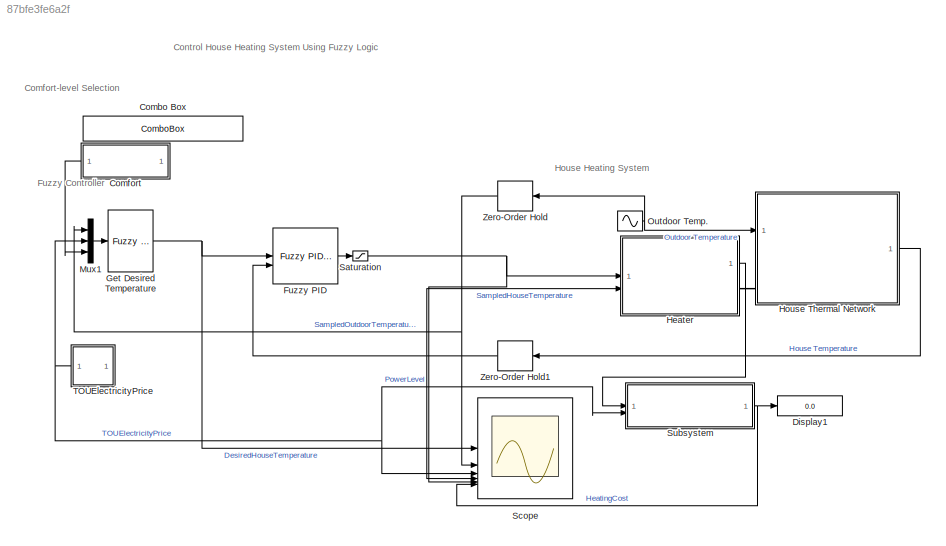
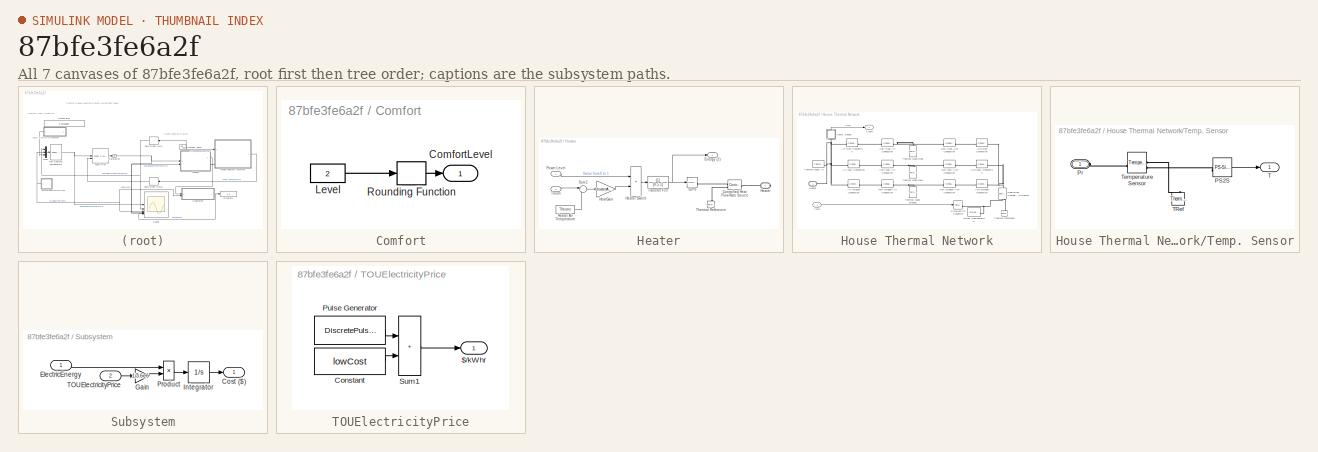
[diagram: thumbnail index - all 7 canvases of the model, root first then tree order]
MODEL slx_87bfe3fe6a2f
KIND model
CONFIG AbsTol = 1e-3
CONFIG EnableMultiTasking = off
CONFIG FixedStep = 10
CONFIG MaxStep = 50
CONFIG MinStep = auto
CONFIG PreLoadFcn = % FIS for setting a desired temperature\ndesiredHT = readfis('desiredHT.fis');\n\n% FPID\nGE = 0.6667;\nGCE = 148.8761;\nGCU = 1.3478e-05;\nGU = 0.0363;\nN = 0.000746309714556118;\n\nfpid = readfis('fpid.fis');\n\n%   Simscape Demo "House Heating System"\nmax_temp = 23;    % Maximum temperature\nmin_temp = 18;     % Minimum temperature\n% Walls\n% House length = 30 m\nlenHouse = 30;\n% House width = 10 m\nwidHouse =...<+2477ch>
CONFIG RelTol = 1e-3
CONFIG SampleTimeConstraint = Unconstrained
CONFIG SolverName = FixedStepAuto
CONFIG StartTime = 0.0
CONFIG StopTime = 3600*24*2
BLOCK [ComboBox] Combo Box
  LabelPosition = Hide
  SelectedLabel = Variable
BLOCK [SubSystem] Comfort
BLOCK [Outport] Comfort/ComfortLevel
BLOCK [Constant] Comfort/Level
  OutMax = 3
  OutMin = 1
  Value = 2
BLOCK [Rounding] Comfort/Rounding Function
  Operator = round
BLOCK [Display] Display1
  Decimation = 1
BLOCK [Reference] Fuzzy PID  REF=fuzblock/Fuzzy PID Controller  (lib defined in mdl_858b3b3e7478)
  SourceBlock = fuzblock/Fuzzy PID Controller
  SourceType = Fuzzy PID Controller
BLOCK [Reference] Get Desired Temperature  REF=fuzblock/Fuzzy Logic   (lib defined in mdl_858b3b3e7478)
Controller
  SourceBlock = fuzblock/Fuzzy Logic \nController
  SourceType = Fuzzy Inference System
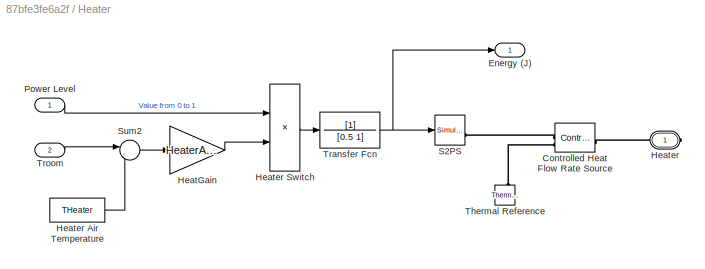
BLOCK [SubSystem] Heater
BLOCK [Reference] Heater/Controlled Heat Flow Rate Source  REF=fl_lib/Thermal/Thermal Sources/Controlled Heat Flow
Rate Source
  SourceBlock = fl_lib/Thermal/Thermal Sources/Controlled Heat Flow\nRate Source
  SourceType = Controlled Heat Flow\nRate Source
BLOCK [Outport] Heater/Energy (J)
BLOCK [Gain] Heater/HeatGain
  Gain = HeaterAirFlow * c_air
BLOCK [PMIOPort] Heater/Heater
  Side = Right
  Tag = PMCPort
BLOCK [Constant] Heater/Heater Air Temperature
  Value = THeater
BLOCK [Product] Heater/Heater Switch
  RndMeth = Zero
BLOCK [Inport] Heater/Power Level
BLOCK [Reference] Heater/S2PS  REF=nesl_utility/Simulink-PS
Converter
  SourceBlock = nesl_utility/Simulink-PS\nConverter
  SourceType = Simulink-PS\nConverter
BLOCK [Sum] Heater/Sum2
  Inputs = |-+
BLOCK [Reference] Heater/Thermal Reference  REF=fl_lib/Thermal/Thermal Elements/Thermal Reference
  NameLocation = right
  SourceBlock = fl_lib/Thermal/Thermal Elements/Thermal Reference
  SourceType = Thermal Reference
BLOCK [TransferFcn] Heater/Transfer Fcn
  Denominator = [0.5 1]
BLOCK [Inport] Heater/Troom
  Port = 2
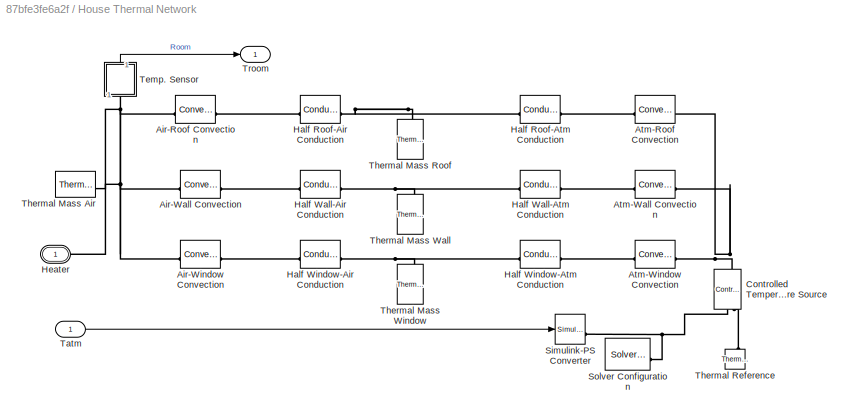
BLOCK [SubSystem] House Thermal Network
  Tag = PublishSubsystem
BLOCK [Reference] House Thermal Network/Air-Roof Convection  REF=fl_lib/Thermal/Thermal Elements/Convective Heat
Transfer
  SourceBlock = fl_lib/Thermal/Thermal Elements/Convective Heat\nTransfer
  SourceType = Convective Heat\nTransfer
BLOCK [Reference] House Thermal Network/Air-Wall Convection  REF=fl_lib/Thermal/Thermal Elements/Convective Heat
Transfer
  SourceBlock = fl_lib/Thermal/Thermal Elements/Convective Heat\nTransfer
  SourceType = Convective Heat\nTransfer
BLOCK [Reference] House Thermal Network/Air-Window Convection  REF=fl_lib/Thermal/Thermal Elements/Convective Heat
Transfer
  SourceBlock = fl_lib/Thermal/Thermal Elements/Convective Heat\nTransfer
  SourceType = Convective Heat\nTransfer
BLOCK [Reference] House Thermal Network/Atm-Roof Convection  REF=fl_lib/Thermal/Thermal Elements/Convective Heat
Transfer
  SourceBlock = fl_lib/Thermal/Thermal Elements/Convective Heat\nTransfer
  SourceType = Convective Heat\nTransfer
BLOCK [Reference] House Thermal Network/Atm-Wall Convection  REF=fl_lib/Thermal/Thermal Elements/Convective Heat
Transfer
  SourceBlock = fl_lib/Thermal/Thermal Elements/Convective Heat\nTransfer
  SourceType = Convective Heat\nTransfer
BLOCK [Reference] House Thermal Network/Atm-Window Convection  REF=fl_lib/Thermal/Thermal Elements/Convective Heat
Transfer
  SourceBlock = fl_lib/Thermal/Thermal Elements/Convective Heat\nTransfer
  SourceType = Convective Heat\nTransfer
BLOCK [Reference] House Thermal Network/Controlled Temperature Source  REF=fl_lib/Thermal/Thermal Sources/Controlled
Temperature Source
  NameLocation = right
  SourceBlock = fl_lib/Thermal/Thermal Sources/Controlled\nTemperature Source
  SourceType = Controlled\nTemperature Source
BLOCK [Reference] House Thermal Network/Half Roof-Air Conduction  REF=fl_lib/Thermal/Thermal Elements/Conductive Heat
Transfer
  SourceBlock = fl_lib/Thermal/Thermal Elements/Conductive Heat\nTransfer
  SourceType = Conductive Heat\nTransfer
BLOCK [Reference] House Thermal Network/Half Roof-Atm Conduction  REF=fl_lib/Thermal/Thermal Elements/Conductive Heat
Transfer
  SourceBlock = fl_lib/Thermal/Thermal Elements/Conductive Heat\nTransfer
  SourceType = Conductive Heat\nTransfer
BLOCK [Reference] House Thermal Network/Half Wall-Air Conduction  REF=fl_lib/Thermal/Thermal Elements/Conductive Heat
Transfer
  SourceBlock = fl_lib/Thermal/Thermal Elements/Conductive Heat\nTransfer
  SourceType = Conductive Heat\nTransfer
BLOCK [Reference] House Thermal Network/Half Wall-Atm Conduction  REF=fl_lib/Thermal/Thermal Elements/Conductive Heat
Transfer
  SourceBlock = fl_lib/Thermal/Thermal Elements/Conductive Heat\nTransfer
  SourceType = Conductive Heat\nTransfer
BLOCK [Reference] House Thermal Network/Half Window-Air Conduction  REF=fl_lib/Thermal/Thermal Elements/Conductive Heat
Transfer
  SourceBlock = fl_lib/Thermal/Thermal Elements/Conductive Heat\nTransfer
  SourceType = Conductive Heat\nTransfer
BLOCK [Reference] House Thermal Network/Half Window-Atm Conduction  REF=fl_lib/Thermal/Thermal Elements/Conductive Heat
Transfer
  SourceBlock = fl_lib/Thermal/Thermal Elements/Conductive Heat\nTransfer
  SourceType = Conductive Heat\nTransfer
BLOCK [PMIOPort] House Thermal Network/Heater
  Side = Left
  Tag = PMCPort
BLOCK [Reference] House Thermal Network/Simulink-PS Converter  REF=nesl_utility/Simulink-PS
Converter
  SourceBlock = nesl_utility/Simulink-PS\nConverter
  SourceType = Simulink-PS\nConverter
BLOCK [Reference] House Thermal Network/Solver Configuration  REF=nesl_utility/Solver
Configuration
  SourceBlock = nesl_utility/Solver\nConfiguration
  SourceType = Solver\nConfiguration
BLOCK [Inport] House Thermal Network/Tatm
BLOCK [SubSystem] House Thermal Network/Temp. Sensor
  NameLocation = right
BLOCK [Reference] House Thermal Network/Temp. Sensor/PS2S  REF=nesl_utility/PS-Simulink
Converter
  SourceBlock = nesl_utility/PS-Simulink\nConverter
  SourceType = PS-Simulink\nConverter
BLOCK [PMIOPort] House Thermal Network/Temp. Sensor/Pr
  Side = Left
BLOCK [Outport] House Thermal Network/Temp. Sensor/T
  VectorParamsAs1DForOutWhenUnconnected = off
BLOCK [Reference] House Thermal Network/Temp. Sensor/TRef  REF=fl_lib/Thermal/Thermal Elements/Thermal Reference
  NameLocation = right
  SourceBlock = fl_lib/Thermal/Thermal Elements/Thermal Reference
  SourceType = Thermal Reference
BLOCK [Reference] House Thermal Network/Temp. Sensor/Temperature Sensor  REF=fl_lib/Thermal/Thermal Sensors/Temperature Sensor
  SourceBlock = fl_lib/Thermal/Thermal Sensors/Temperature Sensor
  SourceType = Temperature Sensor
BLOCK [Reference] House Thermal Network/Thermal Mass Air  REF=fl_lib/Thermal/Thermal Elements/Thermal Mass
  NameLocation = top
  SourceBlock = fl_lib/Thermal/Thermal Elements/Thermal Mass
  SourceType = Thermal Mass
BLOCK [Reference] House Thermal Network/Thermal Mass Roof  REF=fl_lib/Thermal/Thermal Elements/Thermal Mass
  NameLocation = right
  SourceBlock = fl_lib/Thermal/Thermal Elements/Thermal Mass
  SourceType = Thermal Mass
BLOCK [Reference] House Thermal Network/Thermal Mass Wall  REF=fl_lib/Thermal/Thermal Elements/Thermal Mass
  NameLocation = right
  SourceBlock = fl_lib/Thermal/Thermal Elements/Thermal Mass
  SourceType = Thermal Mass
BLOCK [Reference] House Thermal Network/Thermal Mass Window  REF=fl_lib/Thermal/Thermal Elements/Thermal Mass
  NameLocation = right
  SourceBlock = fl_lib/Thermal/Thermal Elements/Thermal Mass
  SourceType = Thermal Mass
BLOCK [Reference] House Thermal Network/Thermal Reference  REF=fl_lib/Thermal/Thermal Elements/Thermal Reference
  NameLocation = right
  SourceBlock = fl_lib/Thermal/Thermal Elements/Thermal Reference
  SourceType = Thermal Reference
BLOCK [Outport] House Thermal Network/Troom
  VectorParamsAs1DForOutWhenUnconnected = off
BLOCK [Mux] Mux1
  DisplayOption = bar
  Inputs = 3
BLOCK [Sin] Outdoor Temp.
  Amplitude = sineAmplitude
  Bias = sineBias
  Frequency = sineFreq
  Phase = sinePhase
  SampleTime = 0
BLOCK [Saturate] Saturation
  LowerLimit = 0
  UpperLimit = 1
BLOCK [Scope] Scope
  Floating = off
  NumInputPorts = 6
  ScopeSpecificationString = Simulink.scopes.TimeScopeBlockCfg('CurrentConfiguration', extmgr.ConfigurationSet(extmgr.Configuration('Core','General UI',true),extmgr.Configuration('Core','Source UI',true),extmgr.Configuration('Sources','WiredSimulink',true),extmgr.Configuration('Visuals','Time Domain',true,'SerializedDisplays',{struct('MinYLimReal','19.75301','MaxYLimReal','22.22287','YLabelReal','Temperature (deg C)','MinYLim...<+5525ch>
BLOCK [SubSystem] Subsystem
BLOCK [Outport] Subsystem/Cost ($)
BLOCK [Inport] Subsystem/ElectricEnergy
BLOCK [Gain] Subsystem/Gain
  Gain = 1/3.6e6
BLOCK [Integrator] Subsystem/Integrator
BLOCK [Product] Subsystem/Product
BLOCK [Inport] Subsystem/TOUElectricityPrice
  Port = 2
BLOCK [SubSystem] TOUElectricityPrice
BLOCK [Outport] TOUElectricityPrice/$//kWhr
BLOCK [Constant] TOUElectricityPrice/Constant
  Value = lowCost
BLOCK [DiscretePulseGenerator] TOUElectricityPrice/Pulse Generator
  Amplitude = highCost-lowCost
  Period = 21*3600
  PhaseDelay = 10*3600
  PulseType = Time based
  PulseWidth = 11*100/21
BLOCK [Sum] TOUElectricityPrice/Sum1
  IconShape = rectangular
BLOCK [ZeroOrderHold] Zero-Order Hold
  SampleTime = TemperatureSampleTime
BLOCK [ZeroOrderHold] Zero-Order Hold1
  SampleTime = TemperatureSampleTime
ANNOTATION (root): Control House Heating System Using Fuzzy Logic
ANNOTATION (root): Comfort-level Selection
ANNOTATION (root): Fuzzy Controller
ANNOTATION (root): House Heating System
LINE Comfort/Level:1 -> Comfort/Rounding Function:1
LINE Comfort/Rounding Function:1 -> Comfort/ComfortLevel:1
LINE Comfort:1 -> Mux1:3
LINE Fuzzy PID:1 -> Saturation:1
NET Get Desired Temperature:1 -> Fuzzy PID:1, Scope:1
LINE Heater/HeatGain:1 -> Heater/Heater Switch:2
LINE Heater/Heater Air Temperature:1 -> Heater/Sum2:2
LINE Heater/Heater Switch:1 -> Heater/Transfer Fcn:1
LINE Heater/Power Level:1 -> Heater/Heater Switch:1
LINE Heater/Sum2:1 -> Heater/HeatGain:1
NET Heater/Transfer Fcn:1 -> Heater/Energy (J):1, Heater/S2PS:1
LINE Heater/Troom:1 -> Heater/Sum2:1
LINE Heater:1 -> Subsystem:1
LINE House Thermal Network/Tatm:1 -> House Thermal Network/Simulink-PS Converter:1
LINE House Thermal Network/Temp. Sensor/PS2S:1 -> House Thermal Network/Temp. Sensor/T:1
LINE House Thermal Network/Temp. Sensor:1 -> House Thermal Network/Troom:1
LINE House Thermal Network:1 -> Zero-Order Hold1:1
LINE Mux1:1 -> Get Desired Temperature:1
NET Outdoor Temp.:1 -> House Thermal Network:1, Zero-Order Hold:1
NET Saturation:1 -> Heater:1, Scope:5
LINE Subsystem/ElectricEnergy:1 -> Subsystem/Product:1
LINE Subsystem/Gain:1 -> Subsystem/Product:2
LINE Subsystem/Integrator:1 -> Subsystem/Cost ($):1
LINE Subsystem/Product:1 -> Subsystem/Integrator:1
LINE Subsystem/TOUElectricityPrice:1 -> Subsystem/Gain:1
NET Subsystem:1 -> Display1:1, Scope:6
LINE TOUElectricityPrice/Constant:1 -> TOUElectricityPrice/Sum1:2
LINE TOUElectricityPrice/Pulse Generator:1 -> TOUElectricityPrice/Sum1:1
LINE TOUElectricityPrice/Sum1:1 -> TOUElectricityPrice/$//kWhr:1
NET TOUElectricityPrice:1 -> Mux1:2, Scope:3, Subsystem:2
NET Zero-Order Hold1:1 -> Fuzzy PID:2, Heater:2, Scope:4
NET Zero-Order Hold:1 -> Mux1:1, Scope:2
PLINE Heater/Controlled Heat Flow Rate Source:LConn1 -- Heater/Heater:RConn1
PLINE Heater/Controlled Heat Flow Rate Source:RConn1 -- Heater/S2PS:RConn1
PLINE Heater/Controlled Heat Flow Rate Source:RConn2 -- Heater/Thermal Reference:LConn1
PLINE Heater:RConn1 -- House Thermal Network:LConn1
PNET net1: House Thermal Network/Air-Roof Convection:LConn1 -- House Thermal Network/Air-Wall Convection:LConn1 -- House Thermal Network/Air-Window Convection:LConn1 -- House Thermal Network/Heater:RConn1 -- House Thermal Network/Temp. Sensor:LConn1 -- House Thermal Network/Thermal Mass Air:LConn1
PLINE House Thermal Network/Air-Roof Convection:RConn1 -- House Thermal Network/Half Roof-Air Conduction:LConn1
PLINE House Thermal Network/Air-Wall Convection:RConn1 -- House Thermal Network/Half Wall-Air Conduction:LConn1
PLINE House Thermal Network/Air-Window Convection:RConn1 -- House Thermal Network/Half Window-Air Conduction:LConn1
PLINE House Thermal Network/Atm-Roof Convection:LConn1 -- House Thermal Network/Half Roof-Atm Conduction:RConn1
PNET net2: House Thermal Network/Atm-Roof Convection:RConn1 -- House Thermal Network/Atm-Wall Convection:RConn1 -- House Thermal Network/Atm-Window Convection:RConn1 -- House Thermal Network/Controlled Temperature Source:LConn1
PLINE House Thermal Network/Atm-Wall Convection:LConn1 -- House Thermal Network/Half Wall-Atm Conduction:RConn1
PLINE House Thermal Network/Atm-Window Convection:LConn1 -- House Thermal Network/Half Window-Atm Conduction:RConn1
PNET net3: House Thermal Network/Controlled Temperature Source:RConn1 -- House Thermal Network/Simulink-PS Converter:RConn1 -- House Thermal Network/Solver Configuration:RConn1
PLINE House Thermal Network/Controlled Temperature Source:RConn2 -- House Thermal Network/Thermal Reference:LConn1
PNET net4: House Thermal Network/Half Roof-Air Conduction:RConn1 -- House Thermal Network/Half Roof-Atm Conduction:LConn1 -- House Thermal Network/Thermal Mass Roof:LConn1
PNET net5: House Thermal Network/Half Wall-Air Conduction:RConn1 -- House Thermal Network/Half Wall-Atm Conduction:LConn1 -- House Thermal Network/Thermal Mass Wall:LConn1
PNET net6: House Thermal Network/Half Window-Air Conduction:RConn1 -- House Thermal Network/Half Window-Atm Conduction:LConn1 -- House Thermal Network/Thermal Mass Window:LConn1
PLINE House Thermal Network/Temp. Sensor/PS2S:LConn1 -- House Thermal Network/Temp. Sensor/Temperature Sensor:RConn2
PLINE House Thermal Network/Temp. Sensor/Pr:RConn1 -- House Thermal Network/Temp. Sensor/Temperature Sensor:LConn1
PLINE House Thermal Network/Temp. Sensor/TRef:LConn1 -- House Thermal Network/Temp. Sensor/Temperature Sensor:RConn1
note: NET lines group one-source signal fan-out (src -> all destinations, sorted); 1:1 wires keep LINE; PNET lines group multi-terminal physical nets as a canonical sorted terminal list (undirected conserving connections); 2-terminal nets keep the pairwise PLINE form
